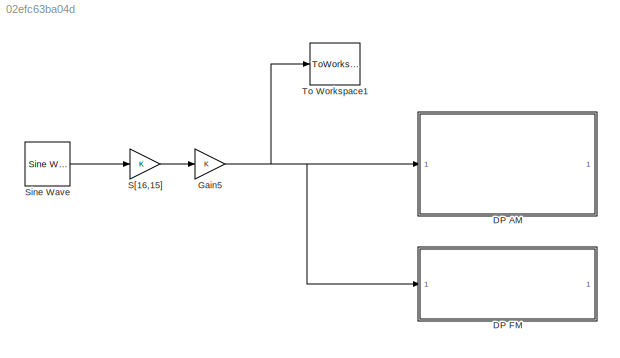
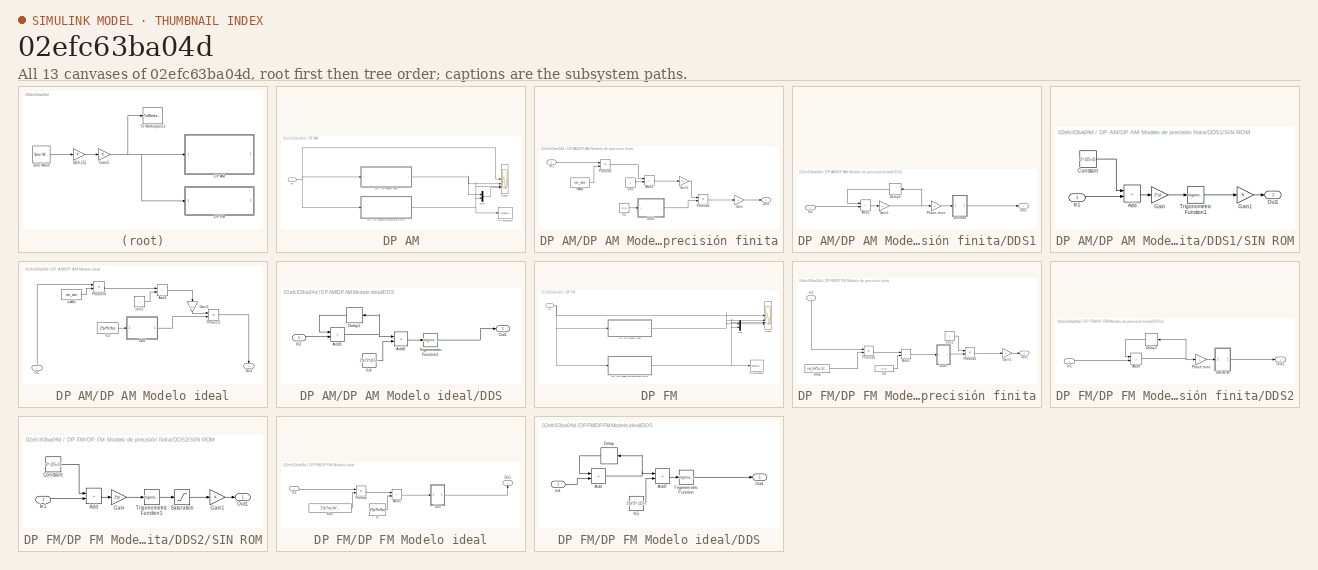
[diagram: thumbnail index - all 13 canvases of the model, root first then tree order]
MODEL slx_02efc63ba04d
KIND model
CONFIG AbsTol = auto
CONFIG EnableMultiTasking = on
CONFIG FixedStep = auto
CONFIG MaxStep = auto
CONFIG MinStep = auto
CONFIG RelTol = 1e-3
CONFIG SampleTimeConstraint = Unconstrained
CONFIG SolverName = ode45
CONFIG StartTime = 0.0
CONFIG StopTime = sim_time
BLOCK [SubSystem] DP AM
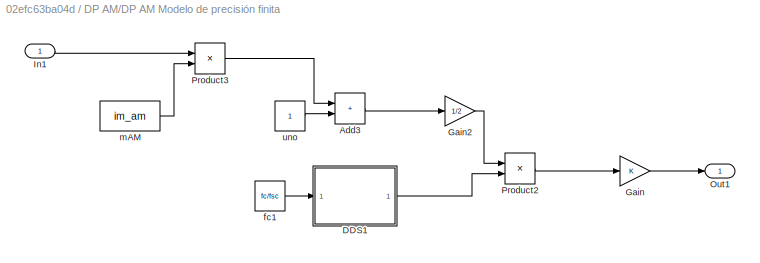
BLOCK [SubSystem] DP AM/DP AM Modelo de precisión finita
BLOCK [Sum] DP AM/DP AM Modelo de precisión finita/Add3
  AccumDataTypeStr = fixdt(1,17,15)
  IconShape = rectangular
  OutDataTypeStr = fixdt(1,17,15)
BLOCK [SubSystem] DP AM/DP AM Modelo de precisión finita/DDS1
BLOCK [Sum] DP AM/DP AM Modelo de precisión finita/DDS1/Add2
  AccumDataTypeStr = fixdt(0,24,24)
  IconShape = rectangular
  OutDataTypeStr = fixdt(0,24,24)
  RndMeth = Convergent
BLOCK [Delay] DP AM/DP AM Modelo de precisión finita/DDS1/Delay4
  DelayLength = 1
  InputPortMap = u0
BLOCK [Gain] DP AM/DP AM Modelo de precisión finita/DDS1/Gain1
  OutDataTypeStr = double
BLOCK [Inport] DP AM/DP AM Modelo de precisión finita/DDS1/In1
BLOCK [Outport] DP AM/DP AM Modelo de precisión finita/DDS1/Out1
  VectorParamsAs1DForOutWhenUnconnected = off
BLOCK [Gain] DP AM/DP AM Modelo de precisión finita/DDS1/Phase trunc
  OutDataTypeStr = fixdt(0,15,15)
BLOCK [SubSystem] DP AM/DP AM Modelo de precisión finita/DDS1/SIN ROM
BLOCK [Sum] DP AM/DP AM Modelo de precisión finita/DDS1/SIN ROM/Add
  IconShape = rectangular
BLOCK [Constant] DP AM/DP AM Modelo de precisión finita/DDS1/SIN ROM/Constant
  Value = 2^-(15+1)
BLOCK [Gain] DP AM/DP AM Modelo de precisión finita/DDS1/SIN ROM/Gain
  Gain = 2*pi
BLOCK [Gain] DP AM/DP AM Modelo de precisión finita/DDS1/SIN ROM/Gain1
  OutDataTypeStr = fixdt(1,16,15)
  RndMeth = Round
  SaturateOnIntegerOverflow = on
BLOCK [Inport] DP AM/DP AM Modelo de precisión finita/DDS1/SIN ROM/In1
BLOCK [Outport] DP AM/DP AM Modelo de precisión finita/DDS1/SIN ROM/Out1
  VectorParamsAs1DForOutWhenUnconnected = off
BLOCK [Trigonometry] DP AM/DP AM Modelo de precisión finita/DDS1/SIN ROM/Trigonometric Function1
BLOCK [Gain] DP AM/DP AM Modelo de precisión finita/Gain
  OutDataTypeStr = double
BLOCK [Gain] DP AM/DP AM Modelo de precisión finita/Gain2
  Gain = 1/2
  OutDataTypeStr = fixdt(1,17,15)
BLOCK [Inport] DP AM/DP AM Modelo de precisión finita/In1
BLOCK [Outport] DP AM/DP AM Modelo de precisión finita/Out1
  VectorParamsAs1DForOutWhenUnconnected = off
BLOCK [Product] DP AM/DP AM Modelo de precisión finita/Product2
  OutDataTypeStr = fixdt(1,16,15)
BLOCK [Product] DP AM/DP AM Modelo de precisión finita/Product3
  OutDataTypeStr = fixdt(1,16,15)
BLOCK [Constant] DP AM/DP AM Modelo de precisión finita/fc1
  OutDataTypeStr = fixdt(0,24,24)
  Value = fc/fsc
BLOCK [Constant] DP AM/DP AM Modelo de precisión finita/mAM
  OutDataTypeStr = fixdt(0,16,15)
  Value = im_am
BLOCK [Constant] DP AM/DP AM Modelo de precisión finita/uno
  OutDataTypeStr = fixdt(0,16,15)
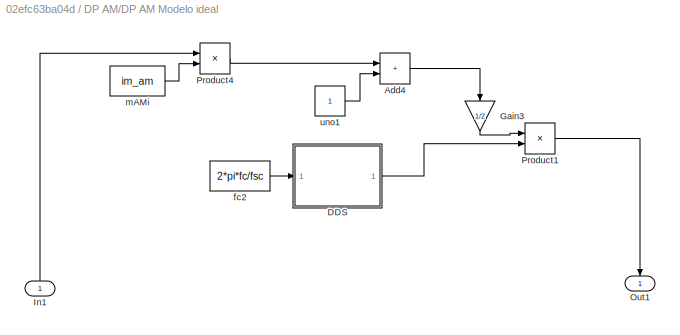
BLOCK [SubSystem] DP AM/DP AM Modelo ideal
BLOCK [Sum] DP AM/DP AM Modelo ideal/Add4
  IconShape = rectangular
BLOCK [SubSystem] DP AM/DP AM Modelo ideal/DDS
BLOCK [Sum] DP AM/DP AM Modelo ideal/DDS/Add1
  IconShape = rectangular
BLOCK [Sum] DP AM/DP AM Modelo ideal/DDS/Add6
  IconShape = rectangular
BLOCK [Delay] DP AM/DP AM Modelo ideal/DDS/Delay1
  DelayLength = 1
  InputPortMap = u0
BLOCK [Inport] DP AM/DP AM Modelo ideal/DDS/In1
BLOCK [Outport] DP AM/DP AM Modelo ideal/DDS/Out1
  VectorParamsAs1DForOutWhenUnconnected = off
BLOCK [Trigonometry] DP AM/DP AM Modelo ideal/DDS/Trigonometric Function1
BLOCK [Constant] DP AM/DP AM Modelo ideal/DDS/fc4
  Value = 2*pi*2^-(15+1)
BLOCK [Gain] DP AM/DP AM Modelo ideal/Gain3
  Gain = 1/2
  NameLocation = left
  OutDataTypeStr = double
BLOCK [Inport] DP AM/DP AM Modelo ideal/In1
  NameLocation = right
BLOCK [Outport] DP AM/DP AM Modelo ideal/Out1
  NameLocation = right
  VectorParamsAs1DForOutWhenUnconnected = off
BLOCK [Product] DP AM/DP AM Modelo ideal/Product1
BLOCK [Product] DP AM/DP AM Modelo ideal/Product4
BLOCK [Constant] DP AM/DP AM Modelo ideal/fc2
  Value = 2*pi*fc/fsc
BLOCK [Constant] DP AM/DP AM Modelo ideal/mAMi 
  Value = im_am
BLOCK [Constant] DP AM/DP AM Modelo ideal/uno1
BLOCK [Inport] DP AM/In2
BLOCK [Mux] DP AM/Mux1
  DisplayOption = bar
  Inputs = 2
BLOCK [Scope] DP AM/Scope3
  Floating = off
  NumInputPorts = 4
  ScopeSpecificationString = Simulink.scopes.TimeScopeBlockCfg('CurrentConfiguration', extmgr.ConfigurationSet(extmgr.Configuration('Core','General UI',true),extmgr.Configuration('Core','Source UI',true),extmgr.Configuration('Sources','WiredSimulink',true,'DataLoggingVariableName','ScopeData3','DataLoggingSaveFormat','Array','DataLoggingDecimation','1','DataLoggingDecimateData',true),extmgr.Configuration('Visuals','Time Domai...<+3770ch>
BLOCK [ToWorkspace] DP AM/To Workspace2
  MaxDataPoints = inf
  SampleTime = -1
  Save2DSignal = 2-D array (concatenate along first dimension)
  VariableName = s_am
BLOCK [SubSystem] DP FM
BLOCK [SubSystem] DP FM/DP FM Modelo de precisión finita
BLOCK [Sum] DP FM/DP FM Modelo de precisión finita/Add2
  AccumDataTypeStr = double
  IconShape = rectangular
  OutDataTypeStr = fixdt(1,24,24)
BLOCK [SubSystem] DP FM/DP FM Modelo de precisión finita/DDS2
BLOCK [Sum] DP FM/DP FM Modelo de precisión finita/DDS2/Add8
  AccumDataTypeStr = fixdt(0,24,24)
  IconShape = rectangular
  OutDataTypeStr = fixdt(0,24,24)
  RndMeth = Convergent
BLOCK [Delay] DP FM/DP FM Modelo de precisión finita/DDS2/Delay2
  DelayLength = 1
  InputPortMap = u0
BLOCK [Inport] DP FM/DP FM Modelo de precisión finita/DDS2/In1
BLOCK [Outport] DP FM/DP FM Modelo de precisión finita/DDS2/Out1
  VectorParamsAs1DForOutWhenUnconnected = off
BLOCK [Gain] DP FM/DP FM Modelo de precisión finita/DDS2/Phase trunc
  OutDataTypeStr = fixdt(0,15,15)
BLOCK [SubSystem] DP FM/DP FM Modelo de precisión finita/DDS2/SIN ROM
BLOCK [Sum] DP FM/DP FM Modelo de precisión finita/DDS2/SIN ROM/Add
  IconShape = rectangular
BLOCK [Constant] DP FM/DP FM Modelo de precisión finita/DDS2/SIN ROM/Constant
  Value = 2^-(15+1)
BLOCK [Gain] DP FM/DP FM Modelo de precisión finita/DDS2/SIN ROM/Gain
  Gain = 2*pi
BLOCK [Gain] DP FM/DP FM Modelo de precisión finita/DDS2/SIN ROM/Gain1
  OutDataTypeStr = fixdt(1,16,15)
  RndMeth = Round
  SaturateOnIntegerOverflow = on
BLOCK [Inport] DP FM/DP FM Modelo de precisión finita/DDS2/SIN ROM/In1
BLOCK [Outport] DP FM/DP FM Modelo de precisión finita/DDS2/SIN ROM/Out1
  VectorParamsAs1DForOutWhenUnconnected = off
BLOCK [Saturate] DP FM/DP FM Modelo de precisión finita/DDS2/SIN ROM/Saturation
  LowerLimit = -(1-2^-15)
  UpperLimit = 1-2^-15
BLOCK [Trigonometry] DP FM/DP FM Modelo de precisión finita/DDS2/SIN ROM/Trigonometric Function1
BLOCK [Gain] DP FM/DP FM Modelo de precisión finita/Gain1
  OutDataTypeStr = double
BLOCK [Inport] DP FM/DP FM Modelo de precisión finita/In1
  NameLocation = right
BLOCK [Constant] DP FM/DP FM Modelo de precisión finita/Kfm1
  OutDataTypeStr = fixdt(0,16,16)
  Value = im_fm*1e-3/fsc
BLOCK [Outport] DP FM/DP FM Modelo de precisión finita/Out1
  VectorParamsAs1DForOutWhenUnconnected = off
BLOCK [Product] DP FM/DP FM Modelo de precisión finita/Product5
  OutDataTypeStr = fixdt(1,16,15)
BLOCK [Product] DP FM/DP FM Modelo de precisión finita/Product6
  OutDataTypeStr = fixdt(1,24,24)
BLOCK [Constant] DP FM/DP FM Modelo de precisión finita/fc3
  OutDataTypeStr = fixdt(0,24,24)
  Value = fc/fsc
BLOCK [Constant] DP FM/DP FM Modelo de precisión finita/uno2
  OutDataTypeStr = fixdt(0,17,15)
BLOCK [SubSystem] DP FM/DP FM Modelo ideal
BLOCK [Sum] DP FM/DP FM Modelo ideal/Add5
  IconShape = rectangular
BLOCK [SubSystem] DP FM/DP FM Modelo ideal/DDS
BLOCK [Sum] DP FM/DP FM Modelo ideal/DDS/Add
  IconShape = rectangular
BLOCK [Sum] DP FM/DP FM Modelo ideal/DDS/Add7
  IconShape = rectangular
BLOCK [Delay] DP FM/DP FM Modelo ideal/DDS/Delay
  DelayLength = 1
  InputPortMap = u0
BLOCK [Inport] DP FM/DP FM Modelo ideal/DDS/In1
BLOCK [Outport] DP FM/DP FM Modelo ideal/DDS/Out1
  VectorParamsAs1DForOutWhenUnconnected = off
BLOCK [Trigonometry] DP FM/DP FM Modelo ideal/DDS/Trigonometric Function
BLOCK [Constant] DP FM/DP FM Modelo ideal/DDS/fc5
  Value = 2*pi*2^-(15+1)
BLOCK [Inport] DP FM/DP FM Modelo ideal/In1
BLOCK [Constant] DP FM/DP FM Modelo ideal/Kfm
  Value = 2*pi*im_fm*1e-3/fsc
BLOCK [Outport] DP FM/DP FM Modelo ideal/Out1
  NameLocation = right
  VectorParamsAs1DForOutWhenUnconnected = off
BLOCK [Product] DP FM/DP FM Modelo ideal/Product
BLOCK [Constant] DP FM/DP FM Modelo ideal/fc
  Value = 2*pi*fc/fsc
BLOCK [Inport] DP FM/In1
BLOCK [Mux] DP FM/Mux
  DisplayOption = bar
  Inputs = 2
BLOCK [Scope] DP FM/Scope1
  Floating = off
  NumInputPorts = 4
  ScopeSpecificationString = Simulink.scopes.TimeScopeBlockCfg('CurrentConfiguration', extmgr.ConfigurationSet(extmgr.Configuration('Core','General UI',true),extmgr.Configuration('Core','Source UI',true),extmgr.Configuration('Sources','WiredSimulink',true,'DataLoggingSaveFormat','Array','DataLoggingDecimation','1','DataLoggingDecimateData',true),extmgr.Configuration('Visuals','Time Domain',true,'SerializedDisplays',{struct('M...<+3662ch>
BLOCK [ToWorkspace] DP FM/To Workspace3
  MaxDataPoints = inf
  SampleTime = -1
  Save2DSignal = 2-D array (concatenate along first dimension)
  VariableName = s_fm
BLOCK [Gain] Gain5
  OutDataTypeStr = double
BLOCK [Gain] S[16,15]
  OutDataTypeStr = fixdt(1,16,15)
  RndMeth = Nearest
BLOCK [Reference] Sine Wave  REF=dspsrcs4/Sine Wave
  SourceBlock = dspsrcs4/Sine Wave
  SourceType = Sine Wave
BLOCK [ToWorkspace] To Workspace1
  MaxDataPoints = inf
  SampleTime = -1
  Save2DSignal = 2-D array (concatenate along first dimension)
  VariableName = s_in
LINE DP AM/DP AM Modelo de precisión finita/Add3:1 -> DP AM/DP AM Modelo de precisión finita/Gain2:1
LINE DP AM/DP AM Modelo de precisión finita/DDS1/Add2:1 -> DP AM/DP AM Modelo de precisión finita/DDS1/Gain1:1
LINE DP AM/DP AM Modelo de precisión finita/DDS1/Delay4:1 -> DP AM/DP AM Modelo de precisión finita/DDS1/Add2:1
NET DP AM/DP AM Modelo de precisión finita/DDS1/Gain1:1 -> DP AM/DP AM Modelo de precisión finita/DDS1/Delay4:1, DP AM/DP AM Modelo de precisión finita/DDS1/Phase trunc:1
LINE DP AM/DP AM Modelo de precisión finita/DDS1/In1:1 -> DP AM/DP AM Modelo de precisión finita/DDS1/Add2:2
LINE DP AM/DP AM Modelo de precisión finita/DDS1/Phase trunc:1 -> DP AM/DP AM Modelo de precisión finita/DDS1/SIN ROM:1
LINE DP AM/DP AM Modelo de precisión finita/DDS1/SIN ROM/Add:1 -> DP AM/DP AM Modelo de precisión finita/DDS1/SIN ROM/Gain:1
LINE DP AM/DP AM Modelo de precisión finita/DDS1/SIN ROM/Constant:1 -> DP AM/DP AM Modelo de precisión finita/DDS1/SIN ROM/Add:1
LINE DP AM/DP AM Modelo de precisión finita/DDS1/SIN ROM/Gain1:1 -> DP AM/DP AM Modelo de precisión finita/DDS1/SIN ROM/Out1:1
LINE DP AM/DP AM Modelo de precisión finita/DDS1/SIN ROM/Gain:1 -> DP AM/DP AM Modelo de precisión finita/DDS1/SIN ROM/Trigonometric Function1:1
LINE DP AM/DP AM Modelo de precisión finita/DDS1/SIN ROM/In1:1 -> DP AM/DP AM Modelo de precisión finita/DDS1/SIN ROM/Add:2
LINE DP AM/DP AM Modelo de precisión finita/DDS1/SIN ROM/Trigonometric Function1:1 -> DP AM/DP AM Modelo de precisión finita/DDS1/SIN ROM/Gain1:1
LINE DP AM/DP AM Modelo de precisión finita/DDS1/SIN ROM:1 -> DP AM/DP AM Modelo de precisión finita/DDS1/Out1:1
LINE DP AM/DP AM Modelo de precisión finita/DDS1:1 -> DP AM/DP AM Modelo de precisión finita/Product2:2
LINE DP AM/DP AM Modelo de precisión finita/Gain2:1 -> DP AM/DP AM Modelo de precisión finita/Product2:1
LINE DP AM/DP AM Modelo de precisión finita/Gain:1 -> DP AM/DP AM Modelo de precisión finita/Out1:1
LINE DP AM/DP AM Modelo de precisión finita/In1:1 -> DP AM/DP AM Modelo de precisión finita/Product3:1
LINE DP AM/DP AM Modelo de precisión finita/Product2:1 -> DP AM/DP AM Modelo de precisión finita/Gain:1
LINE DP AM/DP AM Modelo de precisión finita/Product3:1 -> DP AM/DP AM Modelo de precisión finita/Add3:1
LINE DP AM/DP AM Modelo de precisión finita/fc1:1 -> DP AM/DP AM Modelo de precisión finita/DDS1:1
LINE DP AM/DP AM Modelo de precisión finita/mAM:1 -> DP AM/DP AM Modelo de precisión finita/Product3:2
LINE DP AM/DP AM Modelo de precisión finita/uno:1 -> DP AM/DP AM Modelo de precisión finita/Add3:2
NET DP AM/DP AM Modelo de precisión finita:1 -> DP AM/Mux1:2, DP AM/Scope3:3, DP AM/To Workspace2:1
LINE DP AM/DP AM Modelo ideal/Add4:1 -> DP AM/DP AM Modelo ideal/Gain3:1
NET DP AM/DP AM Modelo ideal/DDS/Add1:1 -> DP AM/DP AM Modelo ideal/DDS/Add6:1, DP AM/DP AM Modelo ideal/DDS/Delay1:1
LINE DP AM/DP AM Modelo ideal/DDS/Add6:1 -> DP AM/DP AM Modelo ideal/DDS/Trigonometric Function1:1
LINE DP AM/DP AM Modelo ideal/DDS/Delay1:1 -> DP AM/DP AM Modelo ideal/DDS/Add1:1
LINE DP AM/DP AM Modelo ideal/DDS/In1:1 -> DP AM/DP AM Modelo ideal/DDS/Add1:2
LINE DP AM/DP AM Modelo ideal/DDS/Trigonometric Function1:1 -> DP AM/DP AM Modelo ideal/DDS/Out1:1
LINE DP AM/DP AM Modelo ideal/DDS/fc4:1 -> DP AM/DP AM Modelo ideal/DDS/Add6:2
LINE DP AM/DP AM Modelo ideal/DDS:1 -> DP AM/DP AM Modelo ideal/Product1:2
LINE DP AM/DP AM Modelo ideal/Gain3:1 -> DP AM/DP AM Modelo ideal/Product1:1
LINE DP AM/DP AM Modelo ideal/In1:1 -> DP AM/DP AM Modelo ideal/Product4:1
LINE DP AM/DP AM Modelo ideal/Product1:1 -> DP AM/DP AM Modelo ideal/Out1:1
LINE DP AM/DP AM Modelo ideal/Product4:1 -> DP AM/DP AM Modelo ideal/Add4:1
LINE DP AM/DP AM Modelo ideal/fc2:1 -> DP AM/DP AM Modelo ideal/DDS:1
LINE DP AM/DP AM Modelo ideal/mAMi :1 -> DP AM/DP AM Modelo ideal/Product4:2
LINE DP AM/DP AM Modelo ideal/uno1:1 -> DP AM/DP AM Modelo ideal/Add4:2
NET DP AM/DP AM Modelo ideal:1 -> DP AM/Mux1:1, DP AM/Scope3:2
NET DP AM/In2:1 -> DP AM/DP AM Modelo de precisión finita:1, DP AM/DP AM Modelo ideal:1, DP AM/Scope3:1
LINE DP AM/Mux1:1 -> DP AM/Scope3:4
LINE DP FM/DP FM Modelo de precisión finita/Add2:1 -> DP FM/DP FM Modelo de precisión finita/DDS2:1
NET DP FM/DP FM Modelo de precisión finita/DDS2/Add8:1 -> DP FM/DP FM Modelo de precisión finita/DDS2/Delay2:1, DP FM/DP FM Modelo de precisión finita/DDS2/Phase trunc:1
LINE DP FM/DP FM Modelo de precisión finita/DDS2/Delay2:1 -> DP FM/DP FM Modelo de precisión finita/DDS2/Add8:1
LINE DP FM/DP FM Modelo de precisión finita/DDS2/In1:1 -> DP FM/DP FM Modelo de precisión finita/DDS2/Add8:2
LINE DP FM/DP FM Modelo de precisión finita/DDS2/Phase trunc:1 -> DP FM/DP FM Modelo de precisión finita/DDS2/SIN ROM:1
LINE DP FM/DP FM Modelo de precisión finita/DDS2/SIN ROM/Add:1 -> DP FM/DP FM Modelo de precisión finita/DDS2/SIN ROM/Gain:1
LINE DP FM/DP FM Modelo de precisión finita/DDS2/SIN ROM/Constant:1 -> DP FM/DP FM Modelo de precisión finita/DDS2/SIN ROM/Add:1
LINE DP FM/DP FM Modelo de precisión finita/DDS2/SIN ROM/Gain1:1 -> DP FM/DP FM Modelo de precisión finita/DDS2/SIN ROM/Out1:1
LINE DP FM/DP FM Modelo de precisión finita/DDS2/SIN ROM/Gain:1 -> DP FM/DP FM Modelo de precisión finita/DDS2/SIN ROM/Trigonometric Function1:1
LINE DP FM/DP FM Modelo de precisión finita/DDS2/SIN ROM/In1:1 -> DP FM/DP FM Modelo de precisión finita/DDS2/SIN ROM/Add:2
LINE DP FM/DP FM Modelo de precisión finita/DDS2/SIN ROM/Saturation:1 -> DP FM/DP FM Modelo de precisión finita/DDS2/SIN ROM/Gain1:1
LINE DP FM/DP FM Modelo de precisión finita/DDS2/SIN ROM/Trigonometric Function1:1 -> DP FM/DP FM Modelo de precisión finita/DDS2/SIN ROM/Saturation:1
LINE DP FM/DP FM Modelo de precisión finita/DDS2/SIN ROM:1 -> DP FM/DP FM Modelo de precisión finita/DDS2/Out1:1
LINE DP FM/DP FM Modelo de precisión finita/DDS2:1 -> DP FM/DP FM Modelo de precisión finita/Product5:2
LINE DP FM/DP FM Modelo de precisión finita/Gain1:1 -> DP FM/DP FM Modelo de precisión finita/Out1:1
LINE DP FM/DP FM Modelo de precisión finita/In1:1 -> DP FM/DP FM Modelo de precisión finita/Product6:1
LINE DP FM/DP FM Modelo de precisión finita/Kfm1:1 -> DP FM/DP FM Modelo de precisión finita/Product6:2
LINE DP FM/DP FM Modelo de precisión finita/Product5:1 -> DP FM/DP FM Modelo de precisión finita/Gain1:1
LINE DP FM/DP FM Modelo de precisión finita/Product6:1 -> DP FM/DP FM Modelo de precisión finita/Add2:1
LINE DP FM/DP FM Modelo de precisión finita/fc3:1 -> DP FM/DP FM Modelo de precisión finita/Add2:2
LINE DP FM/DP FM Modelo de precisión finita/uno2:1 -> DP FM/DP FM Modelo de precisión finita/Product5:1
NET DP FM/DP FM Modelo de precisión finita:1 -> DP FM/Mux:2, DP FM/Scope1:3, DP FM/To Workspace3:1
LINE DP FM/DP FM Modelo ideal/Add5:1 -> DP FM/DP FM Modelo ideal/DDS:1
LINE DP FM/DP FM Modelo ideal/DDS/Add7:1 -> DP FM/DP FM Modelo ideal/DDS/Trigonometric Function:1
NET DP FM/DP FM Modelo ideal/DDS/Add:1 -> DP FM/DP FM Modelo ideal/DDS/Add7:1, DP FM/DP FM Modelo ideal/DDS/Delay:1
LINE DP FM/DP FM Modelo ideal/DDS/Delay:1 -> DP FM/DP FM Modelo ideal/DDS/Add:1
LINE DP FM/DP FM Modelo ideal/DDS/In1:1 -> DP FM/DP FM Modelo ideal/DDS/Add:2
LINE DP FM/DP FM Modelo ideal/DDS/Trigonometric Function:1 -> DP FM/DP FM Modelo ideal/DDS/Out1:1
LINE DP FM/DP FM Modelo ideal/DDS/fc5:1 -> DP FM/DP FM Modelo ideal/DDS/Add7:2
LINE DP FM/DP FM Modelo ideal/DDS:1 -> DP FM/DP FM Modelo ideal/Out1:1
LINE DP FM/DP FM Modelo ideal/In1:1 -> DP FM/DP FM Modelo ideal/Product:1
LINE DP FM/DP FM Modelo ideal/Kfm:1 -> DP FM/DP FM Modelo ideal/Product:2
LINE DP FM/DP FM Modelo ideal/Product:1 -> DP FM/DP FM Modelo ideal/Add5:1
LINE DP FM/DP FM Modelo ideal/fc:1 -> DP FM/DP FM Modelo ideal/Add5:2
NET DP FM/DP FM Modelo ideal:1 -> DP FM/Mux:1, DP FM/Scope1:2
NET DP FM/In1:1 -> DP FM/DP FM Modelo de precisión finita:1, DP FM/DP FM Modelo ideal:1, DP FM/Scope1:1
LINE DP FM/Mux:1 -> DP FM/Scope1:4
NET Gain5:1 -> DP AM:1, DP FM:1, To Workspace1:1
LINE S[16,15]:1 -> Gain5:1
LINE Sine Wave:1 -> S[16,15]:1
note: NET lines group one-source signal fan-out (src -> all destinations, sorted); 1:1 wires keep LINE
